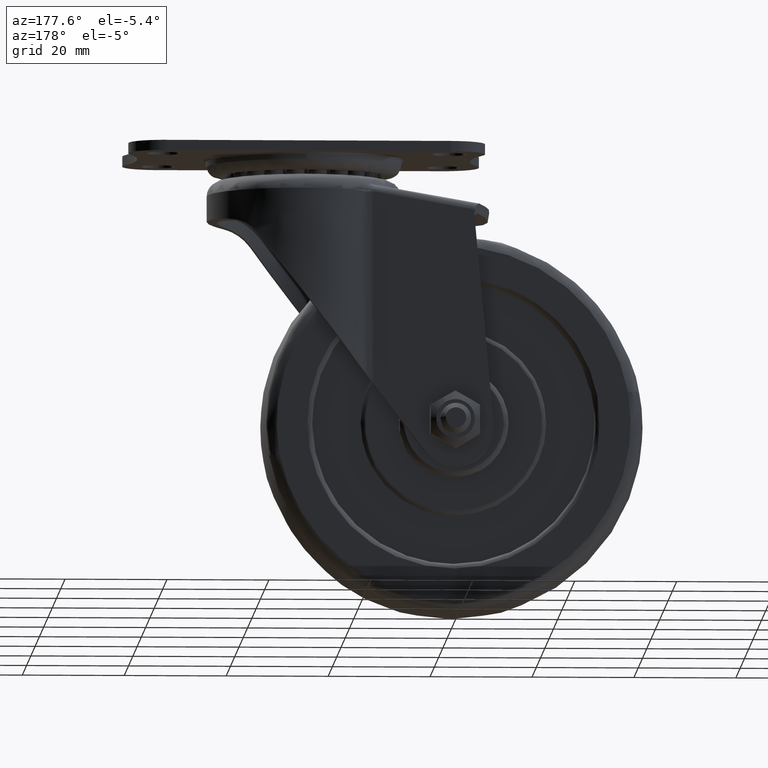
[diagram: clean part render]
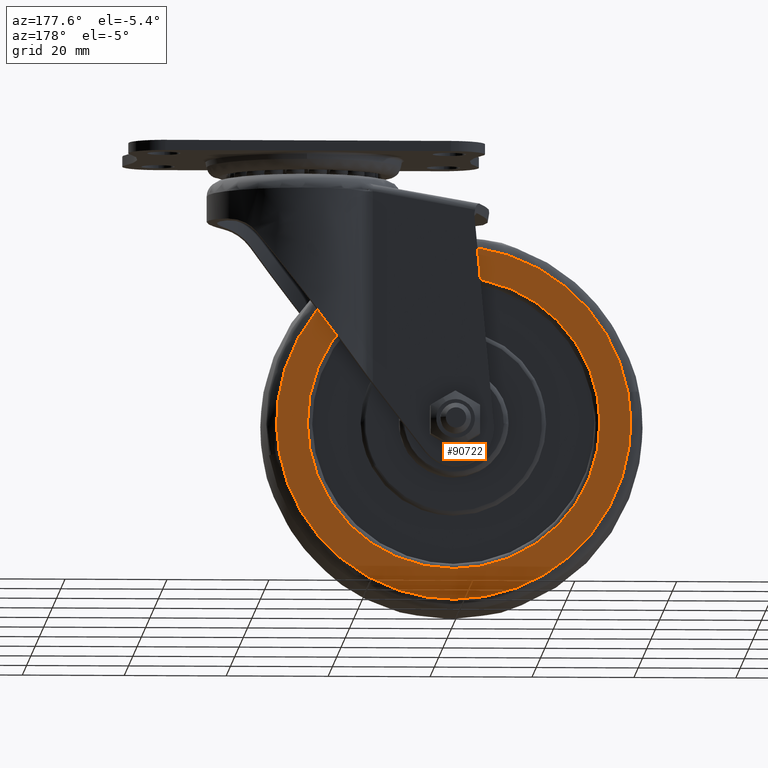
[diagram: same view with one face highlighted and labeled with its STEP entity id]
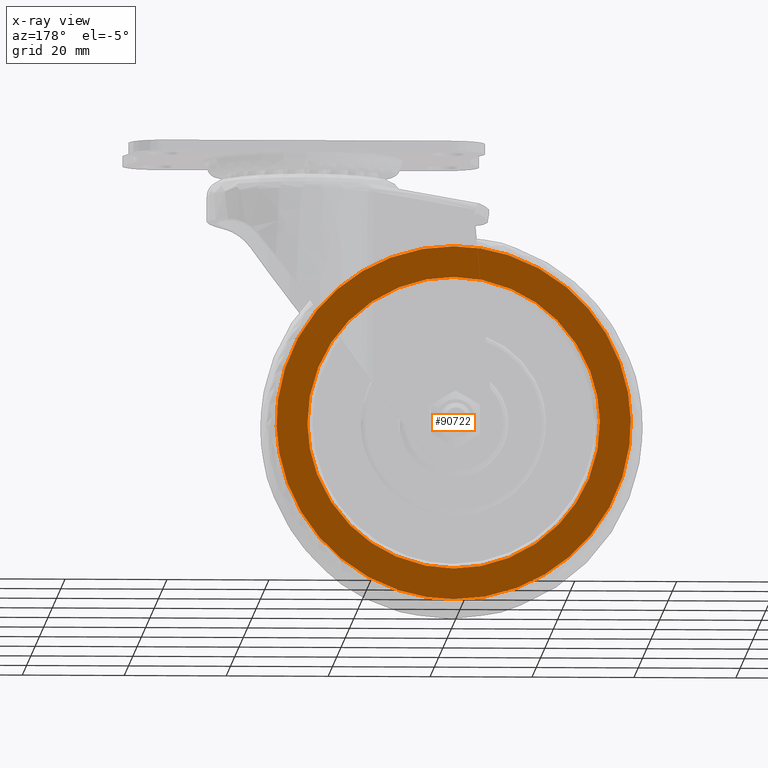
[diagram: x-ray of the same camera — body ghosted, the highlighted face saturated]
A machine part, auxiliary view. The second image highlights one B-rep face of the part: STEP entity #90722.
The next image is the same camera in x-ray: the body ghosted, the highlighted face saturated — about 0% of this face is hidden behind the body in this view.
In plain terms, the highlighted face is a freeform B-spline surface patch.
Its self-contained STEP definition (entity closure, byte-faithful):
#90520=CARTESIAN_POINT('',(34.205144657785283,10.499999999999879,-6.080546329860208));
#90521=VERTEX_POINT('',#90520);
#90522=CARTESIAN_POINT('',(0.0,10.499999999999879,-34.741401301868208));
#90523=VERTEX_POINT('',#90522);
#90524=CARTESIAN_POINT('',(34.205144657785283,10.499999999999879,-6.080546329860208));
#90525=CARTESIAN_POINT('',(29.110190131654964,10.499999999999879,-34.741401302261337));
#90526=CARTESIAN_POINT('',(0.0,10.499999999999879,-34.741401301868208));
#90534=(BOUNDED_CURVE()B_SPLINE_CURVE(2,(#90524,#90525,#90526),.UNSPECIFIED.,.F.,.U.)B_SPLINE_CURVE_WITH_KNOTS((3,3),(0.280081746790351,0.500000000000000),.UNSPECIFIED.)CURVE()GEOMETRIC_REPRESENTATION_ITEM()RATIONAL_B_SPLINE_CURVE((0.937995440889473,0.742349739766376,1.0))REPRESENTATION_ITEM(''));
#90535=EDGE_CURVE('',#90521,#90523,#90534,.T.);
#90552=CARTESIAN_POINT('',(-34.205144657785283,10.499999999999879,6.080546329860203));
#90553=VERTEX_POINT('',#90552);
#90567=CARTESIAN_POINT('',(0.0,10.499999999999879,-34.741401301868208));
#90568=CARTESIAN_POINT('',(-34.741401303721261,10.499999999999877,-34.741401301538794));
#90569=CARTESIAN_POINT('',(-34.741401305932790,10.499999999999879,7.225533E-010));
#90570=CARTESIAN_POINT('',(-34.741401306127827,10.499999999999881,3.063919987265747));
#90571=CARTESIAN_POINT('',(-34.205144657785290,10.499999999999881,6.080546329860203));
#90579=(BOUNDED_CURVE()B_SPLINE_CURVE(2,(#90567,#90568,#90569,#90570,#90571),.UNSPECIFIED.,.F.,.U.)B_SPLINE_CURVE_WITH_KNOTS((3,2,3),(0.500000000000000,0.750000000000000,0.780081746790351),.UNSPECIFIED.)CURVE()GEOMETRIC_REPRESENTATION_ITEM()RATIONAL_B_SPLINE_CURVE((1.0,0.707106781186548,1.0,0.964757041420172,0.937995440889474))REPRESENTATION_ITEM(''));
#90580=EDGE_CURVE('',#90523,#90553,#90579,.T.);
#90608=CARTESIAN_POINT('',(0.0,10.499999999999879,34.741401301868187));
#90609=VERTEX_POINT('',#90608);
#90610=CARTESIAN_POINT('',(0.0,10.499999999999879,34.741401301868187));
#90611=CARTESIAN_POINT('',(34.741401303721247,10.499999999999877,34.741401301538794));
#90612=CARTESIAN_POINT('',(34.741401305932783,10.499999999999879,-7.225467E-010));
#90613=CARTESIAN_POINT('',(34.741401306127820,10.499999999999881,-3.063919987265746));
#90614=CARTESIAN_POINT('',(34.205144657785283,10.499999999999879,-6.080546329860208));
#90622=(BOUNDED_CURVE()B_SPLINE_CURVE(2,(#90610,#90611,#90612,#90613,#90614),.UNSPECIFIED.,.F.,.U.)B_SPLINE_CURVE_WITH_KNOTS((3,2,3),(0.0,0.250000000000000,0.280081746790351),.UNSPECIFIED.)CURVE()GEOMETRIC_REPRESENTATION_ITEM()RATIONAL_B_SPLINE_CURVE((1.0,0.707106781186548,1.0,0.964757041420172,0.937995440889473))REPRESENTATION_ITEM(''));
#90623=EDGE_CURVE('',#90609,#90521,#90622,.T.);
#90625=CARTESIAN_POINT('',(-34.205144657785290,10.499999999999881,6.080546329860203));
#90626=CARTESIAN_POINT('',(-29.110190131654981,10.499999999999879,34.741401302261345));
#90627=CARTESIAN_POINT('',(0.0,10.499999999999879,34.741401301868187));
#90635=(BOUNDED_CURVE()B_SPLINE_CURVE(2,(#90625,#90626,#90627),.UNSPECIFIED.,.F.,.U.)B_SPLINE_CURVE_WITH_KNOTS((3,3),(0.780081746790351,1.0),.UNSPECIFIED.)CURVE()GEOMETRIC_REPRESENTATION_ITEM()RATIONAL_B_SPLINE_CURVE((0.937995440889474,0.742349739766376,1.0))REPRESENTATION_ITEM(''));
#90636=EDGE_CURVE('',#90553,#90609,#90635,.T.);
#90645=CARTESIAN_POINT('',(-38.212036989013093,10.500000000000000,38.212067157253671));
#90646=CARTESIAN_POINT('',(-38.212036989013093,10.500000000000000,-38.212069020927693));
#90647=CARTESIAN_POINT('',(38.212038852685602,10.500000000000000,38.212067157253671));
#90648=CARTESIAN_POINT('',(38.212038852685602,10.500000000000000,-38.212069020927693));
#90649=B_SPLINE_SURFACE_WITH_KNOTS('',1,1,((#90645,#90647),(#90646,#90648)),.UNSPECIFIED.,.F.,.F.,.U.,(2,2),(2,2),(0.0,76.424136178181357),(0.0,76.424075841698681),.UNSPECIFIED.);
#90650=ORIENTED_EDGE('',*,*,#90623,.T.);
#90651=ORIENTED_EDGE('',*,*,#90535,.T.);
#90652=ORIENTED_EDGE('',*,*,#90580,.T.);
#90653=ORIENTED_EDGE('',*,*,#90636,.T.);
#90654=EDGE_LOOP('',(#90650,#90651,#90652,#90653));
#90655=FACE_OUTER_BOUND('',#90654,.T.);
#90656=CARTESIAN_POINT('',(0.0,10.500000000000000,-28.700001000000000));
#90657=VERTEX_POINT('',#90656);
#90658=CARTESIAN_POINT('',(28.697734964635710,10.500000000000000,-0.360645357400142));
#90659=VERTEX_POINT('',#90658);
#90660=CARTESIAN_POINT('',(0.0,10.500000000000000,-28.700001000000000));
#90661=CARTESIAN_POINT('',(28.341593373657435,10.500000000000000,-28.700000999975291));
#90662=CARTESIAN_POINT('',(28.697734964635707,10.500000000000005,-0.360645357400142));
#90670=(BOUNDED_CURVE()B_SPLINE_CURVE(2,(#90660,#90661,#90662),.UNSPECIFIED.,.F.,.U.)B_SPLINE_CURVE_WITH_KNOTS((3,3),(0.0,0.247784295920311),.UNSPECIFIED.)CURVE()GEOMETRIC_REPRESENTATION_ITEM()RATIONAL_B_SPLINE_CURVE((1.0,0.709702639985901,0.994854295640750))REPRESENTATION_ITEM(''));
#90671=EDGE_CURVE('',#90657,#90659,#90670,.T.);
#90672=ORIENTED_EDGE('',*,*,#90671,.T.);
#90673=CARTESIAN_POINT('',(0.0,10.500000000000000,28.700001000000000));
#90674=VERTEX_POINT('',#90673);
#90675=CARTESIAN_POINT('',(28.697734964635707,10.500000000000005,-0.360645357400142));
#90676=CARTESIAN_POINT('',(28.700000996080245,10.499999999999996,-0.180329797716909));
#90677=CARTESIAN_POINT('',(28.700000996092601,10.500000000000000,4.909757E-011));
#90678=CARTESIAN_POINT('',(28.700000998058563,10.500000000000000,28.700001000024390));
#90679=CARTESIAN_POINT('',(0.0,10.500000000000000,28.700001000000000));
#90687=(BOUNDED_CURVE()B_SPLINE_CURVE(2,(#90675,#90676,#90677,#90678,#90679),.UNSPECIFIED.,.F.,.U.)B_SPLINE_CURVE_WITH_KNOTS((3,2,3),(0.247784295920311,0.250000000000000,0.500000000000000),.UNSPECIFIED.)CURVE()GEOMETRIC_REPRESENTATION_ITEM()RATIONAL_B_SPLINE_CURVE((0.994854295640750,0.997404141200647,1.0,0.707106781186547,1.0))REPRESENTATION_ITEM(''));
#90688=EDGE_CURVE('',#90659,#90674,#90687,.T.);
#90689=ORIENTED_EDGE('',*,*,#90688,.T.);
#90690=CARTESIAN_POINT('',(-28.697734964635700,10.500000000000000,0.360645357400140));
#90691=VERTEX_POINT('',#90690);
#90692=CARTESIAN_POINT('',(0.0,10.500000000000000,28.700001000000000));
#90693=CARTESIAN_POINT('',(-28.341593373657421,10.500000000000002,28.700000999975288));
#90694=CARTESIAN_POINT('',(-28.697734964635703,10.499999999999996,0.360645357400140));
#90702=(BOUNDED_CURVE()B_SPLINE_CURVE(2,(#90692,#90693,#90694),.UNSPECIFIED.,.F.,.U.)B_SPLINE_CURVE_WITH_KNOTS((3,3),(0.500000000000000,0.747784295920311),.UNSPECIFIED.)CURVE()GEOMETRIC_REPRESENTATION_ITEM()RATIONAL_B_SPLINE_CURVE((1.0,0.709702639985901,0.994854295640750))REPRESENTATION_ITEM(''));
#90703=EDGE_CURVE('',#90674,#90691,#90702,.T.);
#90704=ORIENTED_EDGE('',*,*,#90703,.T.);
#90705=CARTESIAN_POINT('',(-28.697734964635703,10.499999999999996,0.360645357400140));
#90706=CARTESIAN_POINT('',(-28.700000996080238,10.499999999999998,0.180329797716901));
#90707=CARTESIAN_POINT('',(-28.700000996092591,10.500000000000000,-4.911291E-011));
#90708=CARTESIAN_POINT('',(-28.700000998058563,10.500000000000000,-28.700001000024390));
#90709=CARTESIAN_POINT('',(0.0,10.500000000000000,-28.700001000000000));
#90717=(BOUNDED_CURVE()B_SPLINE_CURVE(2,(#90705,#90706,#90707,#90708,#90709),.UNSPECIFIED.,.F.,.U.)B_SPLINE_CURVE_WITH_KNOTS((3,2,3),(0.747784295920311,0.750000000000000,1.0),.UNSPECIFIED.)CURVE()GEOMETRIC_REPRESENTATION_ITEM()RATIONAL_B_SPLINE_CURVE((0.994854295640750,0.997404141200647,1.0,0.707106781186547,1.0))REPRESENTATION_ITEM(''));
#90718=EDGE_CURVE('',#90691,#90657,#90717,.T.);
#90719=ORIENTED_EDGE('',*,*,#90718,.T.);
#90720=EDGE_LOOP('',(#90672,#90689,#90704,#90719));
#90721=FACE_BOUND('',#90720,.T.);
#90722=ADVANCED_FACE('',(#90655,#90721),#90649,.F.);